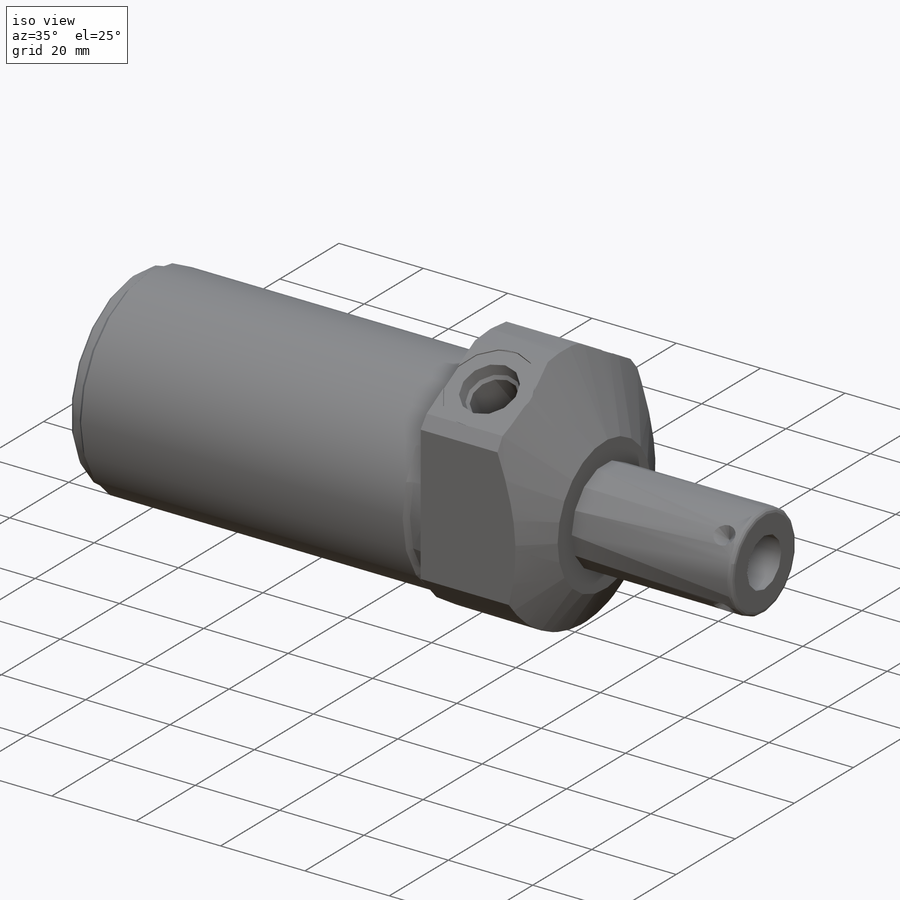
[diagram: iso view]
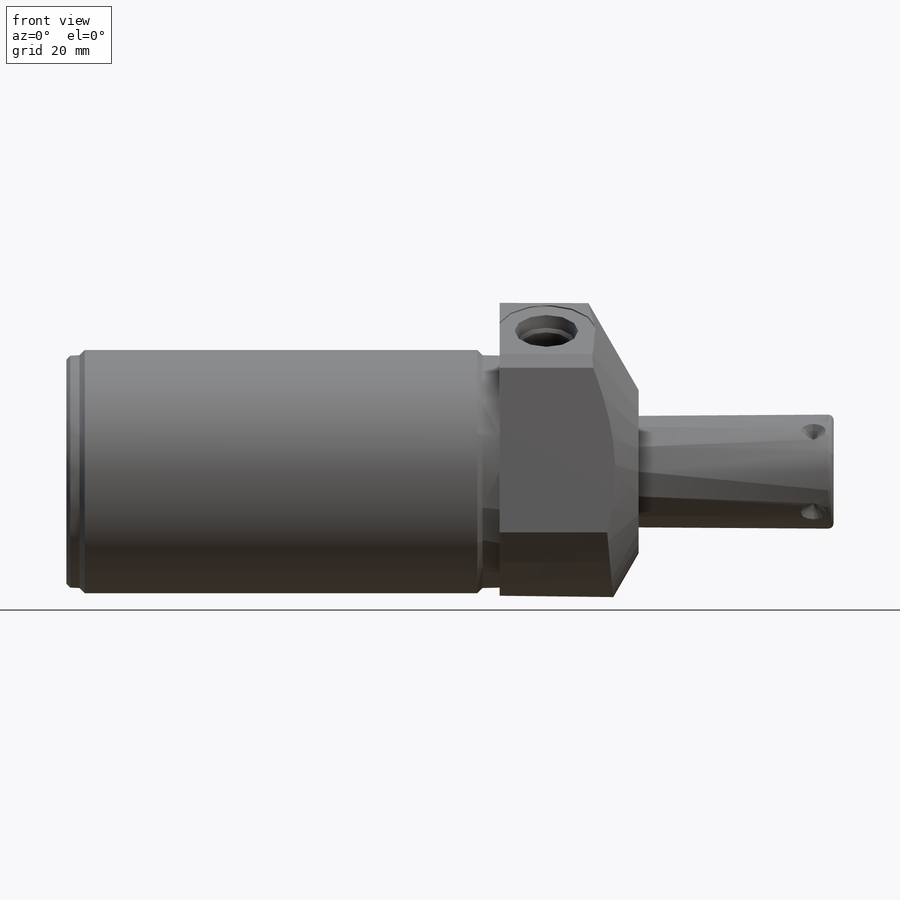
[diagram: front view]
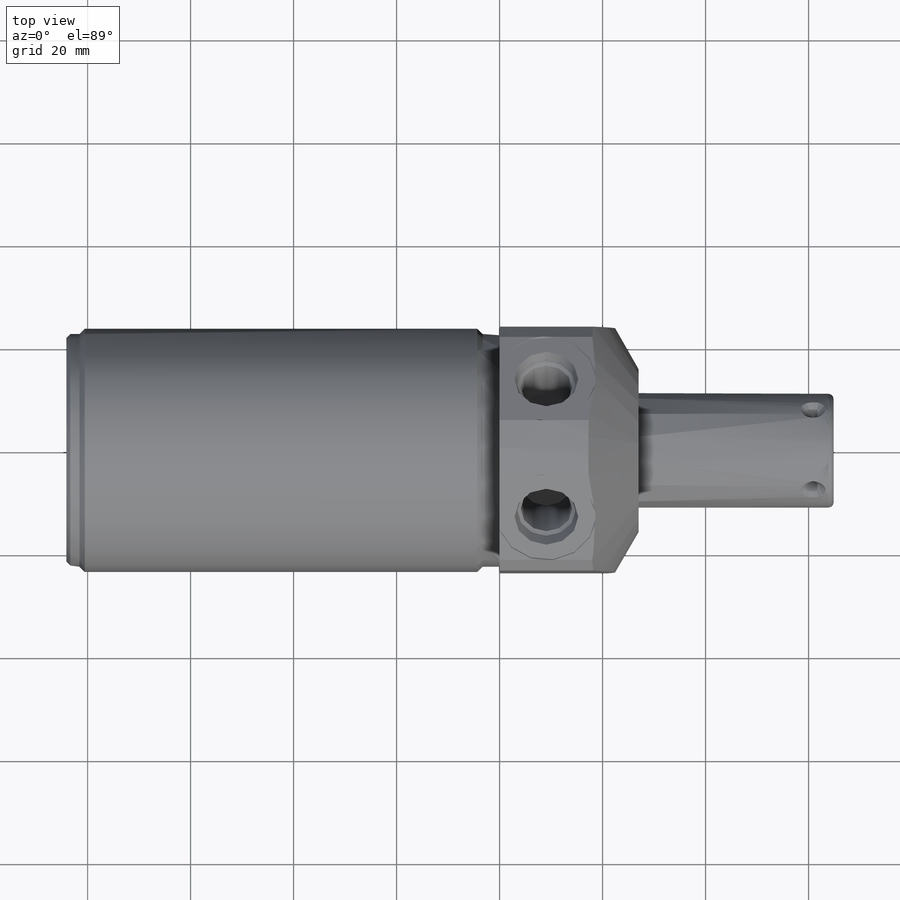
[diagram: top view]
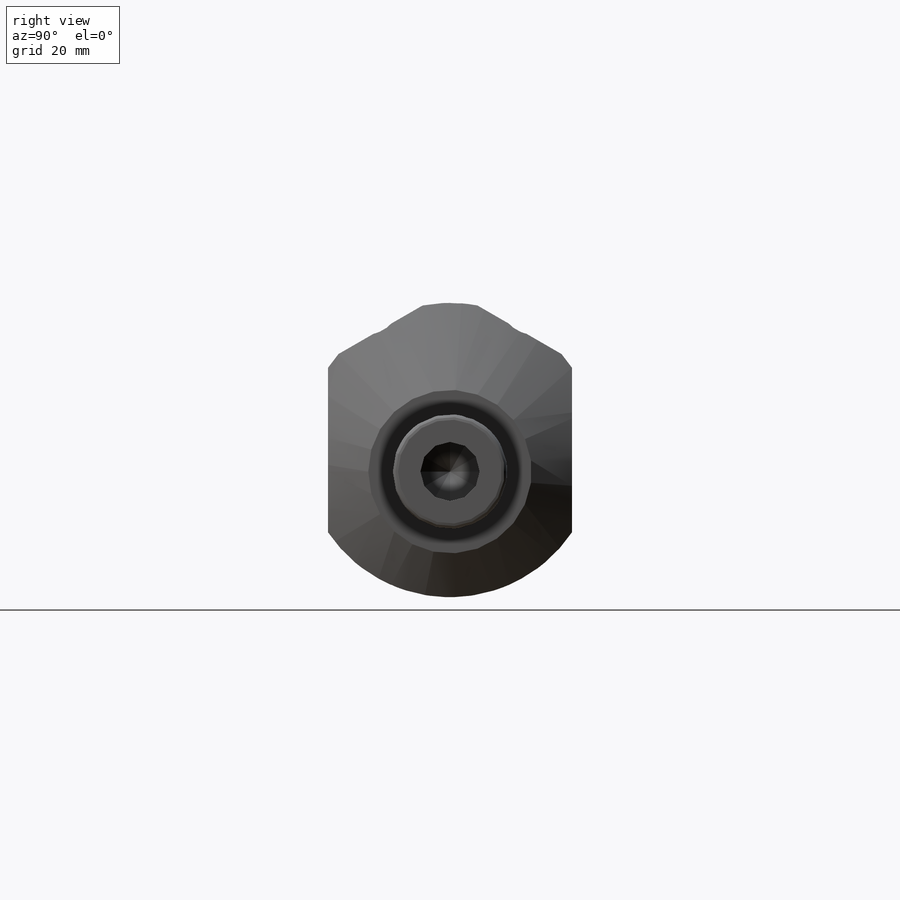
[diagram: right view]
SOLIDWORKS PART (.sldprt)
format: sldprt  version: not decoded by parser v0  size: 409,088 bytes
history: native  units: mm
features: sketch x13, plane x12, cut_revolve x7, cut_extrude x4, material x1, extrude x1, chamfer x1, revolve x1, pattern_circular x1 (+11 scaffold rows collapsed)
feature tree (52):
  scaffold x11  (default folders/planes/origin — collapsed)
  material  "Alloy Steel"
  plane  "Plane1"
  sketch  "Sketch1"  dims[D1=57.15mm]
  extrude  "Extrude1"  Depth=27.0002mm
  plane  "Plane2"
  sketch  "Sketch2"  dims[D2=47.244mm D1=4.191mm D3=0.0mm]
  cut_extrude  "Cut-Extrude1"  [1 undecoded]
  plane  "Plane4"
  sketch  "Sketch4"  dims[c1.D4=69.85mm c1.D1=47.371mm c1.D2=30.607mm c1.D3=~13.67483mm c2.D3=120.0deg]
  cut_extrude  "Cut-Extrude3"  [1 undecoded]
  plane  "Plane6"
  sketch  "Sketch6"  dims[c1.D1=~26.249807mm c2.D1=60.0deg c2.D2=31.75mm c2.D3=122.682mm]
  cut_revolve  "Cut-Revolve2"  Angle=360deg
  plane  "Plane7"
  sketch  "S2D0002"  dims[D1=13.462mm]
  cut_revolve  "Cut-Revolve3"  Angle=360deg
  plane  "Plane8"
  sketch  "Sketch8"  dims[D1=13.462mm]
  cut_revolve  "Cut-Revolve4"  Angle=360deg
  plane  "Plane10"
  sketch  "Sketch18"  dims[D1=19.05mm]
  cut_extrude  "Cut-Extrude4"  Depth=0.254mm
  sketch  "Sketch19"  dims[D1=19.05mm]
  cut_extrude  "Cut-Extrude5"  Depth=0.254mm
  sketch  "Sketch10"  dims[c1.D1=45.212mm c1.D2=1.016mm c2.D2=45.0deg c2.D3=3.302mm]
  cut_revolve  "Cut-Revolve6"  Angle=360deg
  plane  "Plane12"
  sketch  "Sketch12"  dims[c1.D1=45.212mm c1.D2=1.016mm c2.D2=45.0deg c2.D3=2.54mm]
  cut_revolve  "Cut-Revolve8"  Angle=360deg
  chamfer  "Chamfer1"  Distance=0.762mm Angle=45deg
  plane  "Plane13"
  sketch  "Sketch13"  dims[D3=1.016mm D1=22.225mm D2=64.8716mm]
  revolve  "Revolve1"  Angle=360deg
  plane  "Plane14"
  sketch  "S2D0001"  dims[c1.D1=11.5062mm c1.D2=~6.711759mm c2.D2=59.0deg c2.D3=17.018mm]
  cut_revolve  "Cut-Revolve9"  Angle=360deg
  plane  "Plane16"
  plane  "Plane17"
  sketch  "Sketch16"  dims[c1.D1=~3.412497mm c2.D1=45.0deg c2.D2=3.9624mm c2.D3=4.826mm]
  cut_revolve  "Cut-Revolve10"  Angle=360deg
  pattern_circular  "CirPattern1"  Count=4 Angle=360deg
decode coverage: 26 of 28 modeling features carry decoded parameters
note: ~ marks probable driven/reference dimensions
note: 2 parameter values undecoded
note: suppression state not decoded; provenance and decode notes live in map.json
